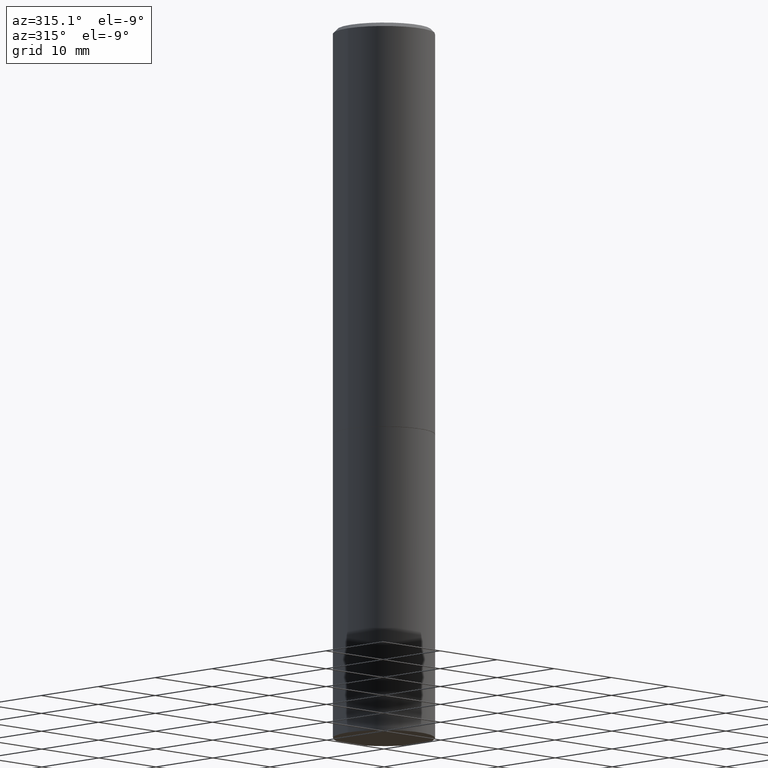
[diagram: clean part render]
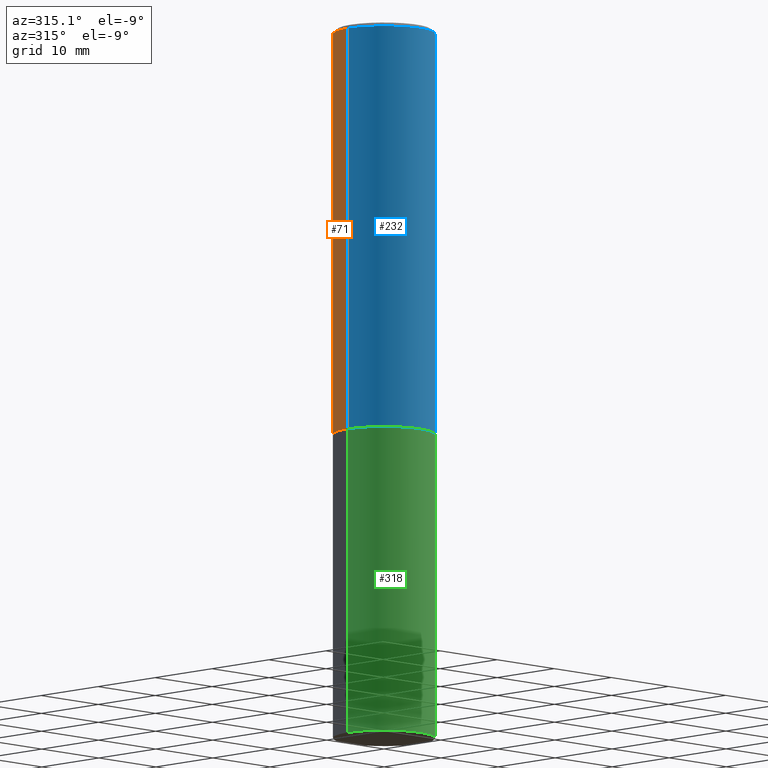
[diagram: same view with three faces highlighted in distinct colors, each labeled with its STEP entity id]
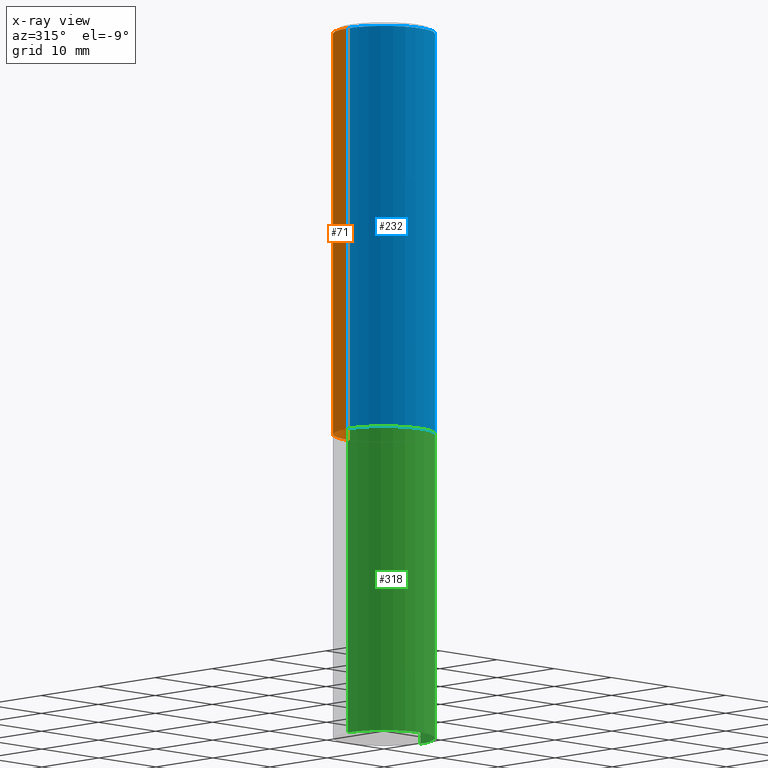
[diagram: x-ray of the same camera — body ghosted, the three highlighted faces saturated]
A machine part, auxiliary view with three faces highlighted in distinct colors.
The next image is the same camera in x-ray (body ghosted, the three faces saturated) — at least one of them is partly hidden behind the body in this view.
Their STEP definitions:

[orange] entity #71 — the highlighted cylindrical surface (partial cylindrical patch) has radius 6.35 mm, axis along (-0, 0, 1).
#6 = LINE ( 'NONE', #67, #364 ) ;
#15 = DIRECTION ( 'NONE',  ( -2.445468806185136597E-29, 3.491481338843145583E-15, 1.000000000000000000 ) ) ;
#46 = CARTESIAN_POINT ( 'NONE',  ( 0.2500000000000000000, -8.725211865769012469E-15, -1.998999999999999666 ) ) ;
#49 = AXIS2_PLACEMENT_3D ( 'NONE', #212, #335, #309 ) ;
#67 = CARTESIAN_POINT ( 'NONE',  ( -0.2499999999999998890, 1.776356839400249676E-15, -1.229733772563726025E-29 ) ) ;
#71 = ADVANCED_FACE ( 'NONE', ( #241 ), #233, .T. ) ;
#85 = AXIS2_PLACEMENT_3D ( 'NONE', #319, #15, #134 ) ;
#87 = CARTESIAN_POINT ( 'NONE',  ( 0.2499999999999998057, -1.784954126219744611E-15, -0.02000000000000006287 ) ) ;
#94 = EDGE_CURVE ( 'NONE', #365, #207, #103, .T. ) ;
#101 = CARTESIAN_POINT ( 'NONE',  ( 0.2499999999999998890, -1.745740669421565889E-15, 1.219044193948983388E-29 ) ) ;
#103 = CIRCLE ( 'NONE', #49, 0.2499999999999998057 ) ;
#120 = VECTOR ( 'NONE', #222, 39.37007874015748143 ) ;
#134 = DIRECTION ( 'NONE',  ( 1.000000000000000000, -6.982962677686266711E-15, 0.000000000000000000 ) ) ;
#152 = CARTESIAN_POINT ( 'NONE',  ( -0.2499999999999998057, 1.675911042644702196E-15, -0.02000000000000006287 ) ) ;
#165 = EDGE_CURVE ( 'NONE', #307, #242, #248, .T. ) ;
#169 = EDGE_LOOP ( 'NONE', ( #354, #209, #254, #171 ) ) ;
#171 = ORIENTED_EDGE ( 'NONE', *, *, #249, .F. ) ;
#206 = DIRECTION ( 'NONE',  ( 1.000000000000000000, -6.982962677686266711E-15, 4.876176775795935793E-29 ) ) ;
#207 = VERTEX_POINT ( 'NONE', #152 ) ;
#209 = ORIENTED_EDGE ( 'NONE', *, *, #271, .T. ) ;
#212 = CARTESIAN_POINT ( 'NONE',  ( 4.890937612370288923E-31, -6.982962677686312563E-17, -0.02000000000000006287 ) ) ;
#219 = LINE ( 'NONE', #101, #120 ) ;
#222 = DIRECTION ( 'NONE',  ( -2.445468806185136877E-29, 3.491481338843145188E-15, 1.000000000000000000 ) ) ;
#224 = AXIS2_PLACEMENT_3D ( 'NONE', #255, #329, #206 ) ;
#233 = CYLINDRICAL_SURFACE ( 'NONE', #224, 0.2499999999999998890 ) ;
#241 = FACE_OUTER_BOUND ( 'NONE', #169, .T. ) ;
#242 = VERTEX_POINT ( 'NONE', #314 ) ;
#248 = CIRCLE ( 'NONE', #85, 0.2500000000000000000 ) ;
#249 = EDGE_CURVE ( 'NONE', #307, #365, #219, .T. ) ;
#254 = ORIENTED_EDGE ( 'NONE', *, *, #94, .F. ) ;
#255 = CARTESIAN_POINT ( 'NONE',  ( 0.000000000000000000, 0.000000000000000000, 0.000000000000000000 ) ) ;
#271 = EDGE_CURVE ( 'NONE', #242, #207, #6, .T. ) ;
#307 = VERTEX_POINT ( 'NONE', #46 ) ;
#309 = DIRECTION ( 'NONE',  ( 1.000000000000000000, -6.982962677686266711E-15, 0.000000000000000000 ) ) ;
#314 = CARTESIAN_POINT ( 'NONE',  ( -0.2500000000000000000, -1.748293572161903489E-15, -1.998999999999999666 ) ) ;
#317 = DIRECTION ( 'NONE',  ( -2.445468806185136877E-29, 3.491481338843145188E-15, 1.000000000000000000 ) ) ;
#319 = CARTESIAN_POINT ( 'NONE',  ( 4.888492143564087030E-29, -6.979471196347446580E-15, -1.998999999999999666 ) ) ;
#329 = DIRECTION ( 'NONE',  ( -2.445468806185136597E-29, 3.491481338843145583E-15, 1.000000000000000000 ) ) ;
#335 = DIRECTION ( 'NONE',  ( -2.445468806185136597E-29, 3.491481338843145583E-15, 1.000000000000000000 ) ) ;
#354 = ORIENTED_EDGE ( 'NONE', *, *, #165, .T. ) ;
#364 = VECTOR ( 'NONE', #317, 39.37007874015748143 ) ;
#365 = VERTEX_POINT ( 'NONE', #87 ) ;

[blue] entity #232 — the highlighted cylindrical surface (partial cylindrical patch) has radius 6.35 mm, axis along (-0, 0, 1).
#6 = LINE ( 'NONE', #67, #364 ) ;
#21 = ORIENTED_EDGE ( 'NONE', *, *, #271, .F. ) ;
#46 = CARTESIAN_POINT ( 'NONE',  ( 0.2500000000000000000, -8.725211865769012469E-15, -1.998999999999999666 ) ) ;
#60 = AXIS2_PLACEMENT_3D ( 'NONE', #338, #336, #299 ) ;
#67 = CARTESIAN_POINT ( 'NONE',  ( -0.2499999999999998890, 1.776356839400249676E-15, -1.229733772563726025E-29 ) ) ;
#75 = AXIS2_PLACEMENT_3D ( 'NONE', #246, #289, #92 ) ;
#87 = CARTESIAN_POINT ( 'NONE',  ( 0.2499999999999998057, -1.784954126219744611E-15, -0.02000000000000006287 ) ) ;
#92 = DIRECTION ( 'NONE',  ( 1.000000000000000000, -6.982962677686266711E-15, 4.876176775795935793E-29 ) ) ;
#101 = CARTESIAN_POINT ( 'NONE',  ( 0.2499999999999998890, -1.745740669421565889E-15, 1.219044193948983388E-29 ) ) ;
#106 = CIRCLE ( 'NONE', #60, 0.2499999999999998057 ) ;
#108 = CARTESIAN_POINT ( 'NONE',  ( 4.888492143564087030E-29, -6.979471196347446580E-15, -1.998999999999999666 ) ) ;
#120 = VECTOR ( 'NONE', #222, 39.37007874015748143 ) ;
#152 = CARTESIAN_POINT ( 'NONE',  ( -0.2499999999999998057, 1.675911042644702196E-15, -0.02000000000000006287 ) ) ;
#162 = CIRCLE ( 'NONE', #185, 0.2500000000000000000 ) ;
#170 = CYLINDRICAL_SURFACE ( 'NONE', #75, 0.2499999999999998890 ) ;
#176 = ORIENTED_EDGE ( 'NONE', *, *, #249, .T. ) ;
#185 = AXIS2_PLACEMENT_3D ( 'NONE', #108, #355, #327 ) ;
#205 = EDGE_LOOP ( 'NONE', ( #21, #258, #176, #237 ) ) ;
#207 = VERTEX_POINT ( 'NONE', #152 ) ;
#219 = LINE ( 'NONE', #101, #120 ) ;
#222 = DIRECTION ( 'NONE',  ( -2.445468806185136877E-29, 3.491481338843145188E-15, 1.000000000000000000 ) ) ;
#232 = ADVANCED_FACE ( 'NONE', ( #238 ), #170, .T. ) ;
#237 = ORIENTED_EDGE ( 'NONE', *, *, #358, .F. ) ;
#238 = FACE_OUTER_BOUND ( 'NONE', #205, .T. ) ;
#242 = VERTEX_POINT ( 'NONE', #314 ) ;
#246 = CARTESIAN_POINT ( 'NONE',  ( 0.000000000000000000, 0.000000000000000000, 0.000000000000000000 ) ) ;
#249 = EDGE_CURVE ( 'NONE', #307, #365, #219, .T. ) ;
#258 = ORIENTED_EDGE ( 'NONE', *, *, #288, .T. ) ;
#271 = EDGE_CURVE ( 'NONE', #242, #207, #6, .T. ) ;
#288 = EDGE_CURVE ( 'NONE', #242, #307, #162, .T. ) ;
#289 = DIRECTION ( 'NONE',  ( -2.445468806185136597E-29, 3.491481338843145583E-15, 1.000000000000000000 ) ) ;
#299 = DIRECTION ( 'NONE',  ( 1.000000000000000000, -6.982962677686266711E-15, 0.000000000000000000 ) ) ;
#307 = VERTEX_POINT ( 'NONE', #46 ) ;
#314 = CARTESIAN_POINT ( 'NONE',  ( -0.2500000000000000000, -1.748293572161903489E-15, -1.998999999999999666 ) ) ;
#317 = DIRECTION ( 'NONE',  ( -2.445468806185136877E-29, 3.491481338843145188E-15, 1.000000000000000000 ) ) ;
#327 = DIRECTION ( 'NONE',  ( 1.000000000000000000, -6.982962677686266711E-15, 0.000000000000000000 ) ) ;
#336 = DIRECTION ( 'NONE',  ( -2.445468806185136597E-29, 3.491481338843145583E-15, 1.000000000000000000 ) ) ;
#338 = CARTESIAN_POINT ( 'NONE',  ( 4.890937612370288923E-31, -6.982962677686312563E-17, -0.02000000000000006287 ) ) ;
#355 = DIRECTION ( 'NONE',  ( -2.445468806185136597E-29, 3.491481338843145583E-15, 1.000000000000000000 ) ) ;
#358 = EDGE_CURVE ( 'NONE', #207, #365, #106, .T. ) ;
#364 = VECTOR ( 'NONE', #317, 39.37007874015748143 ) ;
#365 = VERTEX_POINT ( 'NONE', #87 ) ;

[green] entity #318 — the highlighted cylindrical surface (partial cylindrical patch) has radius 6.35 mm, axis along (-0, 0, 1).
#5 = CARTESIAN_POINT ( 'NONE',  ( 0.2500000000000000000, -1.745740669421566678E-15, 1.219044193948983948E-29 ) ) ;
#11 = EDGE_CURVE ( 'NONE', #362, #357, #325, .T. ) ;
#19 = ORIENTED_EDGE ( 'NONE', *, *, #331, .T. ) ;
#20 = EDGE_CURVE ( 'NONE', #90, #362, #123, .T. ) ;
#22 = VECTOR ( 'NONE', #262, 39.37007874015748143 ) ;
#28 = DIRECTION ( 'NONE',  ( -2.445468806185136597E-29, 3.491481338843145583E-15, 1.000000000000000000 ) ) ;
#44 = EDGE_LOOP ( 'NONE', ( #114, #363, #19, #265 ) ) ;
#72 = VERTEX_POINT ( 'NONE', #200 ) ;
#73 = DIRECTION ( 'NONE',  ( 1.000000000000000000, -6.982962677686270655E-15, 0.000000000000000000 ) ) ;
#90 = VERTEX_POINT ( 'NONE', #239 ) ;
#91 = CARTESIAN_POINT ( 'NONE',  ( -0.2500000000000000000, -7.825216842418397817E-15, -1.999999999999999778 ) ) ;
#114 = ORIENTED_EDGE ( 'NONE', *, *, #20, .F. ) ;
#116 = DIRECTION ( 'NONE',  ( -2.445468806185136877E-29, 3.491481338843145188E-15, 1.000000000000000000 ) ) ;
#117 = CARTESIAN_POINT ( 'NONE',  ( 0.2500000000000000000, -8.728703347107857054E-15, -1.999999999999999778 ) ) ;
#123 = LINE ( 'NONE', #259, #256 ) ;
#124 = LINE ( 'NONE', #5, #22 ) ;
#141 = DIRECTION ( 'NONE',  ( 1.000000000000000000, -6.982962677686266711E-15, 0.000000000000000000 ) ) ;
#146 = DIRECTION ( 'NONE',  ( 1.000000000000000000, -6.982962677686266711E-15, 4.876176775795935793E-29 ) ) ;
#168 = CIRCLE ( 'NONE', #346, 0.2500000000000000000 ) ;
#190 = EDGE_CURVE ( 'NONE', #90, #72, #168, .T. ) ;
#200 = CARTESIAN_POINT ( 'NONE',  ( 0.2500000000000000000, -1.396592535537257602E-14, -3.500000000000000000 ) ) ;
#202 = DIRECTION ( 'NONE',  ( -2.445468806185136597E-29, 3.491481338843145583E-15, 1.000000000000000000 ) ) ;
#235 = CARTESIAN_POINT ( 'NONE',  ( 4.890937612370272633E-29, -6.982962677686290376E-15, -1.999999999999999778 ) ) ;
#239 = CARTESIAN_POINT ( 'NONE',  ( -0.2500000000000000000, -7.825216842418397817E-15, -3.500000000000000000 ) ) ;
#245 = AXIS2_PLACEMENT_3D ( 'NONE', #361, #28, #146 ) ;
#256 = VECTOR ( 'NONE', #116, 39.37007874015748143 ) ;
#259 = CARTESIAN_POINT ( 'NONE',  ( -0.2500000000000000000, 1.776356839400250465E-15, -1.229733772563726445E-29 ) ) ;
#262 = DIRECTION ( 'NONE',  ( -2.445468806185136877E-29, 3.491481338843145188E-15, 1.000000000000000000 ) ) ;
#265 = ORIENTED_EDGE ( 'NONE', *, *, #11, .F. ) ;
#270 = CYLINDRICAL_SURFACE ( 'NONE', #245, 0.2500000000000000000 ) ;
#283 = FACE_OUTER_BOUND ( 'NONE', #44, .T. ) ;
#294 = AXIS2_PLACEMENT_3D ( 'NONE', #235, #202, #141 ) ;
#318 = ADVANCED_FACE ( 'NONE', ( #283 ), #270, .T. ) ;
#323 = DIRECTION ( 'NONE',  ( -2.445468806185136597E-29, 3.491481338843145583E-15, 1.000000000000000000 ) ) ;
#325 = CIRCLE ( 'NONE', #294, 0.2500000000000000000 ) ;
#331 = EDGE_CURVE ( 'NONE', #72, #357, #124, .T. ) ;
#346 = AXIS2_PLACEMENT_3D ( 'NONE', #348, #323, #73 ) ;
#348 = CARTESIAN_POINT ( 'NONE',  ( 8.559140821647976968E-29, -1.222018468595100934E-14, -3.500000000000000000 ) ) ;
#357 = VERTEX_POINT ( 'NONE', #117 ) ;
#361 = CARTESIAN_POINT ( 'NONE',  ( 0.000000000000000000, 0.000000000000000000, 0.000000000000000000 ) ) ;
#362 = VERTEX_POINT ( 'NONE', #91 ) ;
#363 = ORIENTED_EDGE ( 'NONE', *, *, #190, .T. ) ;